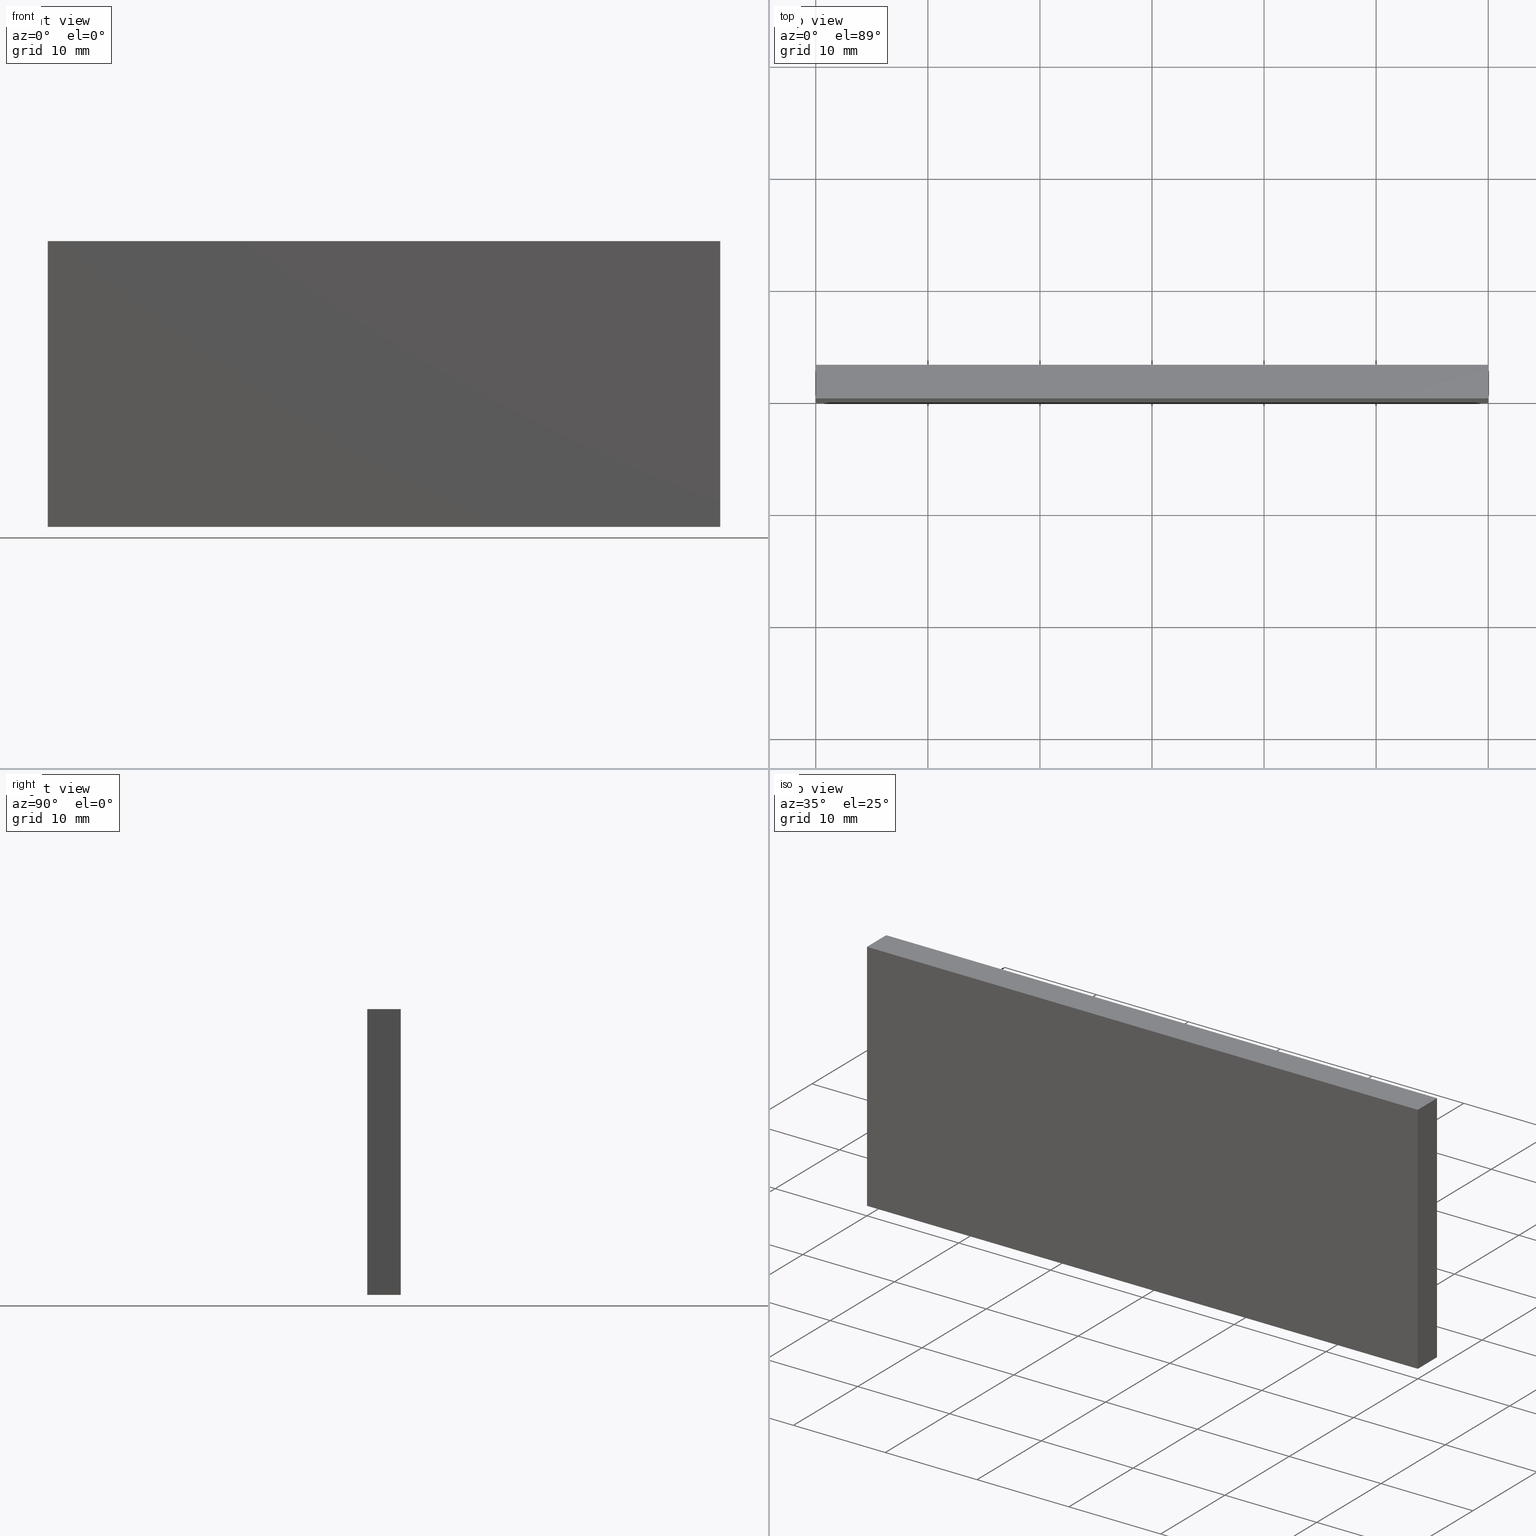
[diagram: canonical four-view strip — front | top / right | iso, engineering-drawing reading convention]
A machine part, canonical four-view strip (front | top / right | iso — engineering-drawing reading convention). The complete STEP part file that produces these views, byte-faithful:
ISO-10303-21;
HEADER;
FILE_DESCRIPTION (( 'STEP AP214' ),
    '1' );
FILE_NAME ('A000200-V.step',
    '2020-03-12T15:09:04',
    ( '' ),
    ( '' ),
    'SwSTEP 2.0',
    'SolidWorks 2010',
    '' );
FILE_SCHEMA (( 'AUTOMOTIVE_DESIGN' ));
ENDSEC;

DATA;
#1 = PRESENTATION_STYLE_ASSIGNMENT (( #147 ) ) ;
#2 = COLOUR_RGB ( '',0.2000000000000000100, 0.2000000000000000100, 0.2000000000000000100 ) ;
#3 = VECTOR ( 'NONE', #118, 1000.000000000000000 ) ;
#4 = LINE ( 'NONE', #115, #3 ) ;
#5 = STYLED_ITEM ( 'NONE', ( #1 ), #243 ) ;
#6 =( GEOMETRIC_REPRESENTATION_CONTEXT ( 3 ) GLOBAL_UNCERTAINTY_ASSIGNED_CONTEXT ( ( #287 ) ) GLOBAL_UNIT_ASSIGNED_CONTEXT ( ( #51, #50, #49 ) ) REPRESENTATION_CONTEXT ( 'NONE', 'WORKASPACE' ) );
#7 = VECTOR ( 'NONE', #114, 1000.000000000000000 ) ;
#8 =( GEOMETRIC_REPRESENTATION_CONTEXT ( 3 ) GLOBAL_UNCERTAINTY_ASSIGNED_CONTEXT ( ( #292 ) ) GLOBAL_UNIT_ASSIGNED_CONTEXT ( ( #69, #66, #67 ) ) REPRESENTATION_CONTEXT ( 'NONE', 'WORKASPACE' ) );
#9 = SHAPE_DEFINITION_REPRESENTATION ( #41, #291 ) ;
#10 = VECTOR ( 'NONE', #133, 1000.000000000000000 ) ;
#11 =( GEOMETRIC_REPRESENTATION_CONTEXT ( 3 ) GLOBAL_UNCERTAINTY_ASSIGNED_CONTEXT ( ( #288 ) ) GLOBAL_UNIT_ASSIGNED_CONTEXT ( ( #137, #136, #139 ) ) REPRESENTATION_CONTEXT ( 'NONE', 'WORKASPACE' ) );
#12 = STYLED_ITEM ( 'NONE', ( #13 ), #291 ) ;
#13 = PRESENTATION_STYLE_ASSIGNMENT (( #70 ) ) ;
#14 = SURFACE_STYLE_FILL_AREA ( #68 ) ;
#15 =( GEOMETRIC_REPRESENTATION_CONTEXT ( 3 ) GLOBAL_UNCERTAINTY_ASSIGNED_CONTEXT ( ( #290 ) ) GLOBAL_UNIT_ASSIGNED_CONTEXT ( ( #113, #143, #74 ) ) REPRESENTATION_CONTEXT ( 'NONE', 'WORKASPACE' ) );
#16 =( GEOMETRIC_REPRESENTATION_CONTEXT ( 3 ) GLOBAL_UNCERTAINTY_ASSIGNED_CONTEXT ( ( #289 ) ) GLOBAL_UNIT_ASSIGNED_CONTEXT ( ( #120, #116, #99 ) ) REPRESENTATION_CONTEXT ( 'NONE', 'WORKASPACE' ) );
#17 = STYLED_ITEM ( 'NONE', ( #19 ), #284 ) ;
#18 = LINE ( 'NONE', #102, #24 ) ;
#19 = PRESENTATION_STYLE_ASSIGNMENT (( #131 ) ) ;
#20 = SURFACE_STYLE_FILL_AREA ( #127 ) ;
#21 = COLOUR_RGB ( '',0.7529411764705882200, 0.7529411764705882200, 0.7529411764705882200 ) ;
#22 = VECTOR ( 'NONE', #110, 1000.000000000000000 ) ;
#23 = LINE ( 'NONE', #129, #22 ) ;
#24 = VECTOR ( 'NONE', #103, 1000.000000000000000 ) ;
#25 = VECTOR ( 'NONE', #123, 1000.000000000000000 ) ;
#26 = LINE ( 'NONE', #142, #25 ) ;
#27 = VECTOR ( 'NONE', #122, 1000.000000000000000 ) ;
#28 = LINE ( 'NONE', #145, #27 ) ;
#29 = VECTOR ( 'NONE', #108, 1000.000000000000000 ) ;
#30 = LINE ( 'NONE', #106, #29 ) ;
#31 = COLOUR_RGB ( '',0.7529411764705882200, 0.7529411764705882200, 0.7529411764705882200 ) ;
#32 = VECTOR ( 'NONE', #105, 1000.000000000000000 ) ;
#33 = VECTOR ( 'NONE', #104, 1000.000000000000000 ) ;
#34 = LINE ( 'NONE', #135, #33 ) ;
#35 = LINE ( 'NONE', #144, #38 ) ;
#36 = VECTOR ( 'NONE', #126, 1000.000000000000000 ) ;
#37 = LINE ( 'NONE', #130, #32 ) ;
#38 = VECTOR ( 'NONE', #141, 1000.000000000000000 ) ;
#39 = LINE ( 'NONE', #111, #36 ) ;
#40 = PRODUCT_DEFINITION_CONTEXT ( 'detailed design', #100, 'design' ) ;
#41 = PRODUCT_DEFINITION_SHAPE ( 'NONE', 'NONE',  #280 ) ;
#42 = SURFACE_STYLE_USAGE ( .BOTH. , #60 ) ;
#43 =( LENGTH_UNIT ( ) NAMED_UNIT ( * ) SI_UNIT ( .MILLI., .METRE. ) );
#44 =( NAMED_UNIT ( * ) PLANE_ANGLE_UNIT ( ) SI_UNIT ( $, .RADIAN. ) );
#45 =( NAMED_UNIT ( * ) SI_UNIT ( $, .STERADIAN. ) SOLID_ANGLE_UNIT ( ) );
#46 = PLANE ( 'NONE',  #263 ) ;
#47 = PLANE ( 'NONE',  #276 ) ;
#48 = DIRECTION ( 'NONE',  ( -0.0000000000000000000, 1.000000000000000000, 0.0000000000000000000 ) ) ;
#49 =( NAMED_UNIT ( * ) SI_UNIT ( $, .STERADIAN. ) SOLID_ANGLE_UNIT ( ) );
#50 =( NAMED_UNIT ( * ) PLANE_ANGLE_UNIT ( ) SI_UNIT ( $, .RADIAN. ) );
#51 =( LENGTH_UNIT ( ) NAMED_UNIT ( * ) SI_UNIT ( .MILLI., .METRE. ) );
#52 = SURFACE_STYLE_USAGE ( .BOTH. , #53 ) ;
#53 = SURFACE_SIDE_STYLE ('',( #200 ) ) ;
#54 = FILL_AREA_STYLE_COLOUR ( '', #210 ) ;
#55 = FILL_AREA_STYLE ('',( #54 ) ) ;
#56 = CARTESIAN_POINT ( 'NONE',  ( 30.00000000000000000, 3.000000000000000000, 12.75000000000000000 ) ) ;
#57 = DIRECTION ( 'NONE',  ( 0.0000000000000000000, 0.0000000000000000000, -1.000000000000000000 ) ) ;
#58 = DIRECTION ( 'NONE',  ( 1.000000000000000000, 0.0000000000000000000, 0.0000000000000000000 ) ) ;
#59 = DIRECTION ( 'NONE',  ( 0.0000000000000000000, -0.0000000000000000000, 1.000000000000000000 ) ) ;
#60 = SURFACE_SIDE_STYLE ('',( #209 ) ) ;
#61 = FILL_AREA_STYLE ('',( #63 ) ) ;
#62 = CARTESIAN_POINT ( 'NONE',  ( 0.0000000000000000000, 3.000000000000000000, 0.0000000000000000000 ) ) ;
#63 = FILL_AREA_STYLE_COLOUR ( '', #226 ) ;
#64 = DIRECTION ( 'NONE',  ( 1.000000000000000000, 0.0000000000000000000, 0.0000000000000000000 ) ) ;
#65 = CARTESIAN_POINT ( 'NONE',  ( 0.0000000000000000000, 0.0000000000000000000, 0.0000000000000000000 ) ) ;
#66 =( NAMED_UNIT ( * ) PLANE_ANGLE_UNIT ( ) SI_UNIT ( $, .RADIAN. ) );
#67 =( NAMED_UNIT ( * ) SI_UNIT ( $, .STERADIAN. ) SOLID_ANGLE_UNIT ( ) );
#68 = FILL_AREA_STYLE ('',( #132 ) ) ;
#69 =( LENGTH_UNIT ( ) NAMED_UNIT ( * ) SI_UNIT ( .MILLI., .METRE. ) );
#70 = SURFACE_STYLE_USAGE ( .BOTH. , #171 ) ;
#71 = CARTESIAN_POINT ( 'NONE',  ( -30.00000000000000000, 3.000000000000000000, 12.75000000000000000 ) ) ;
#72 = DIRECTION ( 'NONE',  ( 0.0000000000000000000, -0.0000000000000000000, 1.000000000000000000 ) ) ;
#73 = CARTESIAN_POINT ( 'NONE',  ( -30.00000000000000000, 0.0000000000000000000, -12.75000000000000000 ) ) ;
#74 =( NAMED_UNIT ( * ) SI_UNIT ( $, .STERADIAN. ) SOLID_ANGLE_UNIT ( ) );
#75 = DIRECTION ( 'NONE',  ( -1.000000000000000000, 0.0000000000000000000, 0.0000000000000000000 ) ) ;
#76 = CARTESIAN_POINT ( 'NONE',  ( 30.00000000000000000, 3.000000000000000000, 12.75000000000000000 ) ) ;
#77 = VERTEX_POINT ( 'NONE', #138 ) ;
#78 = CARTESIAN_POINT ( 'NONE',  ( -30.00000000000000000, 3.000000000000000000, 12.75000000000000000 ) ) ;
#79 = CARTESIAN_POINT ( 'NONE',  ( -30.00000000000000000, 0.0000000000000000000, 12.75000000000000000 ) ) ;
#80 = CARTESIAN_POINT ( 'NONE',  ( 30.00000000000000000, 0.0000000000000000000, 12.75000000000000000 ) ) ;
#81 = CARTESIAN_POINT ( 'NONE',  ( 30.00000000000000000, 0.0000000000000000000, -12.75000000000000000 ) ) ;
#82 = PLANE ( 'NONE',  #268 ) ;
#83 = FILL_AREA_STYLE_COLOUR ( '', #194 ) ;
#84 = CARTESIAN_POINT ( 'NONE',  ( 30.00000000000000000, 3.000000000000000000, -12.75000000000000000 ) ) ;
#85 = FILL_AREA_STYLE ('',( #83 ) ) ;
#86 = SURFACE_SIDE_STYLE ('',( #185 ) ) ;
#87 = SURFACE_STYLE_USAGE ( .BOTH. , #86 ) ;
#88 =( LENGTH_UNIT ( ) NAMED_UNIT ( * ) SI_UNIT ( .MILLI., .METRE. ) );
#89 =( NAMED_UNIT ( * ) PLANE_ANGLE_UNIT ( ) SI_UNIT ( $, .RADIAN. ) );
#90 =( NAMED_UNIT ( * ) SI_UNIT ( $, .STERADIAN. ) SOLID_ANGLE_UNIT ( ) );
#91 = VERTEX_POINT ( 'NONE', #78 ) ;
#92 = VERTEX_POINT ( 'NONE', #73 ) ;
#93 = VERTEX_POINT ( 'NONE', #80 ) ;
#94 = CARTESIAN_POINT ( 'NONE',  ( 0.0000000000000000000, 0.0000000000000000000, 0.0000000000000000000 ) ) ;
#95 = VERTEX_POINT ( 'NONE', #98 ) ;
#96 = VERTEX_POINT ( 'NONE', #81 ) ;
#97 = VERTEX_POINT ( 'NONE', #79 ) ;
#98 = CARTESIAN_POINT ( 'NONE',  ( -30.00000000000000000, 3.000000000000000000, -12.75000000000000000 ) ) ;
#99 =( NAMED_UNIT ( * ) SI_UNIT ( $, .STERADIAN. ) SOLID_ANGLE_UNIT ( ) );
#100 = APPLICATION_CONTEXT ( 'automotive_design' ) ;
#101 = FILL_AREA_STYLE_COLOUR ( '', #31 ) ;
#102 = CARTESIAN_POINT ( 'NONE',  ( -30.00000000000000000, 3.000000000000000000, 12.75000000000000000 ) ) ;
#103 = DIRECTION ( 'NONE',  ( 0.0000000000000000000, 1.000000000000000000, 0.0000000000000000000 ) ) ;
#104 = DIRECTION ( 'NONE',  ( 0.0000000000000000000, 1.000000000000000000, -0.0000000000000000000 ) ) ;
#105 = DIRECTION ( 'NONE',  ( -1.000000000000000000, -0.0000000000000000000, -0.0000000000000000000 ) ) ;
#106 = CARTESIAN_POINT ( 'NONE',  ( -30.00000000000000000, 0.0000000000000000000, 12.75000000000000000 ) ) ;
#107 = APPLICATION_PROTOCOL_DEFINITION ( 'draft international standard', 'automotive_design', 1998, #146 ) ;
#108 = DIRECTION ( 'NONE',  ( -1.000000000000000000, 0.0000000000000000000, -0.0000000000000000000 ) ) ;
#109 = DIRECTION ( 'NONE',  ( 0.0000000000000000000, 0.0000000000000000000, 1.000000000000000000 ) ) ;
#110 = DIRECTION ( 'NONE',  ( 1.000000000000000000, 0.0000000000000000000, 0.0000000000000000000 ) ) ;
#111 = CARTESIAN_POINT ( 'NONE',  ( -30.00000000000000000, 3.000000000000000000, 0.0000000000000000000 ) ) ;
#112 = CARTESIAN_POINT ( 'NONE',  ( -30.00000000000000000, 3.000000000000000000, -12.75000000000000000 ) ) ;
#113 =( LENGTH_UNIT ( ) NAMED_UNIT ( * ) SI_UNIT ( .MILLI., .METRE. ) );
#114 = DIRECTION ( 'NONE',  ( 0.0000000000000000000, -1.000000000000000000, -0.0000000000000000000 ) ) ;
#115 = CARTESIAN_POINT ( 'NONE',  ( 30.00000000000000000, 0.0000000000000000000, 12.75000000000000000 ) ) ;
#116 =( NAMED_UNIT ( * ) PLANE_ANGLE_UNIT ( ) SI_UNIT ( $, .RADIAN. ) );
#117 = SURFACE_SIDE_STYLE ('',( #20 ) ) ;
#118 = DIRECTION ( 'NONE',  ( 0.0000000000000000000, 0.0000000000000000000, 1.000000000000000000 ) ) ;
#119 = CARTESIAN_POINT ( 'NONE',  ( 30.00000000000000000, 3.000000000000000000, 0.0000000000000000000 ) ) ;
#120 =( LENGTH_UNIT ( ) NAMED_UNIT ( * ) SI_UNIT ( .MILLI., .METRE. ) );
#121 = SURFACE_SIDE_STYLE ('',( #206 ) ) ;
#122 = DIRECTION ( 'NONE',  ( 0.0000000000000000000, 0.0000000000000000000, -1.000000000000000000 ) ) ;
#123 = DIRECTION ( 'NONE',  ( -0.0000000000000000000, 1.000000000000000000, 0.0000000000000000000 ) ) ;
#124 = PRODUCT_CONTEXT ( 'NONE', #146, 'mechanical' ) ;
#125 = FILL_AREA_STYLE ('',( #128 ) ) ;
#126 = DIRECTION ( 'NONE',  ( 0.0000000000000000000, -0.0000000000000000000, 1.000000000000000000 ) ) ;
#127 = FILL_AREA_STYLE ('',( #101 ) ) ;
#128 = FILL_AREA_STYLE_COLOUR ( '', #2 ) ;
#129 = CARTESIAN_POINT ( 'NONE',  ( 0.0000000000000000000, 3.000000000000000000, 12.75000000000000000 ) ) ;
#130 = CARTESIAN_POINT ( 'NONE',  ( 0.0000000000000000000, 3.000000000000000000, -12.75000000000000000 ) ) ;
#131 = SURFACE_STYLE_USAGE ( .BOTH. , #117 ) ;
#132 = FILL_AREA_STYLE_COLOUR ( '', #21 ) ;
#133 = DIRECTION ( 'NONE',  ( -0.0000000000000000000, 0.0000000000000000000, -1.000000000000000000 ) ) ;
#134 = APPLICATION_PROTOCOL_DEFINITION ( 'draft international standard', 'automotive_design', 1998, #100 ) ;
#135 = CARTESIAN_POINT ( 'NONE',  ( 30.00000000000000000, 3.000000000000000000, 12.75000000000000000 ) ) ;
#136 =( NAMED_UNIT ( * ) PLANE_ANGLE_UNIT ( ) SI_UNIT ( $, .RADIAN. ) );
#137 =( LENGTH_UNIT ( ) NAMED_UNIT ( * ) SI_UNIT ( .MILLI., .METRE. ) );
#138 = CARTESIAN_POINT ( 'NONE',  ( 30.00000000000000000, 3.000000000000000000, -12.75000000000000000 ) ) ;
#139 =( NAMED_UNIT ( * ) SI_UNIT ( $, .STERADIAN. ) SOLID_ANGLE_UNIT ( ) );
#140 = VERTEX_POINT ( 'NONE', #76 ) ;
#141 = DIRECTION ( 'NONE',  ( 1.000000000000000000, 0.0000000000000000000, -0.0000000000000000000 ) ) ;
#142 = CARTESIAN_POINT ( 'NONE',  ( 30.00000000000000000, 3.000000000000000000, -12.75000000000000000 ) ) ;
#143 =( NAMED_UNIT ( * ) PLANE_ANGLE_UNIT ( ) SI_UNIT ( $, .RADIAN. ) );
#144 = CARTESIAN_POINT ( 'NONE',  ( 30.00000000000000000, 0.0000000000000000000, -12.75000000000000000 ) ) ;
#145 = CARTESIAN_POINT ( 'NONE',  ( -30.00000000000000000, 0.0000000000000000000, -12.75000000000000000 ) ) ;
#146 = APPLICATION_CONTEXT ( 'automotive_design' ) ;
#147 = SURFACE_STYLE_USAGE ( .BOTH. , #121 ) ;
#148 =( NAMED_UNIT ( * ) SI_UNIT ( $, .STERADIAN. ) SOLID_ANGLE_UNIT ( ) );
#149 =( NAMED_UNIT ( * ) PLANE_ANGLE_UNIT ( ) SI_UNIT ( $, .RADIAN. ) );
#150 =( LENGTH_UNIT ( ) NAMED_UNIT ( * ) SI_UNIT ( .MILLI., .METRE. ) );
#151 = PLANE ( 'NONE',  #277 ) ;
#152 = DIRECTION ( 'NONE',  ( 0.0000000000000000000, 0.0000000000000000000, 1.000000000000000000 ) ) ;
#153 = DIRECTION ( 'NONE',  ( -1.000000000000000000, 0.0000000000000000000, -0.0000000000000000000 ) ) ;
#154 = DIRECTION ( 'NONE',  ( 0.0000000000000000000, 0.0000000000000000000, -1.000000000000000000 ) ) ;
#155 = PLANE ( 'NONE',  #255 ) ;
#156 =( NAMED_UNIT ( * ) SI_UNIT ( $, .STERADIAN. ) SOLID_ANGLE_UNIT ( ) );
#157 =( NAMED_UNIT ( * ) PLANE_ANGLE_UNIT ( ) SI_UNIT ( $, .RADIAN. ) );
#158 =( LENGTH_UNIT ( ) NAMED_UNIT ( * ) SI_UNIT ( .MILLI., .METRE. ) );
#159 = SURFACE_STYLE_USAGE ( .BOTH. , #161 ) ;
#160 = FILL_AREA_STYLE ('',( #162 ) ) ;
#161 = SURFACE_SIDE_STYLE ('',( #190 ) ) ;
#162 = FILL_AREA_STYLE_COLOUR ( '', #180 ) ;
#163 = CARTESIAN_POINT ( 'NONE',  ( -30.00000000000000000, 3.000000000000000000, -12.75000000000000000 ) ) ;
#164 = DIRECTION ( 'NONE',  ( 1.000000000000000000, 0.0000000000000000000, -0.0000000000000000000 ) ) ;
#165 = DIRECTION ( 'NONE',  ( -0.0000000000000000000, 1.000000000000000000, 0.0000000000000000000 ) ) ;
#166 = SURFACE_STYLE_USAGE ( .BOTH. , #167 ) ;
#167 = SURFACE_SIDE_STYLE ('',( #195 ) ) ;
#168 = FILL_AREA_STYLE_COLOUR ( '', #201 ) ;
#169 = FILL_AREA_STYLE ('',( #168 ) ) ;
#170 = PLANE ( 'NONE',  #259 ) ;
#171 = SURFACE_SIDE_STYLE ('',( #14 ) ) ;
#172 = DIRECTION ( 'NONE',  ( 0.0000000000000000000, 0.0000000000000000000, 1.000000000000000000 ) ) ;
#173 = ORIENTED_EDGE ( 'NONE', *, *, #275, .F. ) ;
#174 = ORIENTED_EDGE ( 'NONE', *, *, #272, .F. ) ;
#175 = STYLED_ITEM ( 'NONE', ( #202 ), #241 ) ;
#176 = ORIENTED_EDGE ( 'NONE', *, *, #247, .F. ) ;
#177 = FACE_OUTER_BOUND ( 'NONE', #215, .T. ) ;
#178 = ORIENTED_EDGE ( 'NONE', *, *, #254, .F. ) ;
#179 = STYLED_ITEM ( 'NONE', ( #208 ), #240 ) ;
#180 = COLOUR_RGB ( '',0.2000000000000000100, 0.2000000000000000100, 0.2000000000000000100 ) ;
#181 = FACE_OUTER_BOUND ( 'NONE', #231, .T. ) ;
#182 = ORIENTED_EDGE ( 'NONE', *, *, #256, .T. ) ;
#183 = STYLED_ITEM ( 'NONE', ( #184 ), #238 ) ;
#184 = PRESENTATION_STYLE_ASSIGNMENT (( #87 ) ) ;
#185 = SURFACE_STYLE_FILL_AREA ( #85 ) ;
#186 = ORIENTED_EDGE ( 'NONE', *, *, #262, .F. ) ;
#187 = ORIENTED_EDGE ( 'NONE', *, *, #266, .F. ) ;
#188 = ORIENTED_EDGE ( 'NONE', *, *, #253, .T. ) ;
#189 = PRESENTATION_STYLE_ASSIGNMENT (( #166 ) ) ;
#190 = SURFACE_STYLE_FILL_AREA ( #160 ) ;
#191 =( GEOMETRIC_REPRESENTATION_CONTEXT ( 3 ) GLOBAL_UNCERTAINTY_ASSIGNED_CONTEXT ( ( #282 ) ) GLOBAL_UNIT_ASSIGNED_CONTEXT ( ( #88, #89, #90 ) ) REPRESENTATION_CONTEXT ( 'NONE', 'WORKASPACE' ) );
#192 = ORIENTED_EDGE ( 'NONE', *, *, #272, .T. ) ;
#193 = LINE ( 'NONE', #112, #7 ) ;
#194 = COLOUR_RGB ( '',0.2000000000000000100, 0.2000000000000000100, 0.2000000000000000100 ) ;
#195 = SURFACE_STYLE_FILL_AREA ( #169 ) ;
#196 = ORIENTED_EDGE ( 'NONE', *, *, #275, .T. ) ;
#197 = ORIENTED_EDGE ( 'NONE', *, *, #262, .T. ) ;
#198 =( GEOMETRIC_REPRESENTATION_CONTEXT ( 3 ) GLOBAL_UNCERTAINTY_ASSIGNED_CONTEXT ( ( #283 ) ) GLOBAL_UNIT_ASSIGNED_CONTEXT ( ( #43, #44, #45 ) ) REPRESENTATION_CONTEXT ( 'NONE', 'WORKASPACE' ) );
#199 = STYLED_ITEM ( 'NONE', ( #189 ), #239 ) ;
#200 = SURFACE_STYLE_FILL_AREA ( #55 ) ;
#201 = COLOUR_RGB ( '',0.2000000000000000100, 0.2000000000000000100, 0.2000000000000000100 ) ;
#202 = PRESENTATION_STYLE_ASSIGNMENT (( #42 ) ) ;
#203 = FACE_OUTER_BOUND ( 'NONE', #217, .T. ) ;
#204 = ORIENTED_EDGE ( 'NONE', *, *, #246, .F. ) ;
#205 = FACE_OUTER_BOUND ( 'NONE', #216, .T. ) ;
#206 = SURFACE_STYLE_FILL_AREA ( #125 ) ;
#207 = ORIENTED_EDGE ( 'NONE', *, *, #256, .F. ) ;
#208 = PRESENTATION_STYLE_ASSIGNMENT (( #159 ) ) ;
#209 = SURFACE_STYLE_FILL_AREA ( #61 ) ;
#210 = COLOUR_RGB ( '',0.2000000000000000100, 0.2000000000000000100, 0.2000000000000000100 ) ;
#211 = EDGE_LOOP ( 'NONE', ( #204, #186, #220, #207 ) ) ;
#212 = FACE_OUTER_BOUND ( 'NONE', #232, .T. ) ;
#213 = FACE_OUTER_BOUND ( 'NONE', #211, .T. ) ;
#214 =( GEOMETRIC_REPRESENTATION_CONTEXT ( 3 ) GLOBAL_UNCERTAINTY_ASSIGNED_CONTEXT ( ( #285 ) ) GLOBAL_UNIT_ASSIGNED_CONTEXT ( ( #150, #149, #148 ) ) REPRESENTATION_CONTEXT ( 'NONE', 'WORKASPACE' ) );
#215 = EDGE_LOOP ( 'NONE', ( #227, #197, #188, #196 ) ) ;
#216 = EDGE_LOOP ( 'NONE', ( #236, #178, #229, #176 ) ) ;
#217 = EDGE_LOOP ( 'NONE', ( #233, #173, #174, #187 ) ) ;
#218 = PRESENTATION_STYLE_ASSIGNMENT (( #52 ) ) ;
#219 = STYLED_ITEM ( 'NONE', ( #218 ), #242 ) ;
#220 = ORIENTED_EDGE ( 'NONE', *, *, #270, .F. ) ;
#221 =( GEOMETRIC_REPRESENTATION_CONTEXT ( 3 ) GLOBAL_UNCERTAINTY_ASSIGNED_CONTEXT ( ( #286 ) ) GLOBAL_UNIT_ASSIGNED_CONTEXT ( ( #158, #157, #156 ) ) REPRESENTATION_CONTEXT ( 'NONE', 'WORKASPACE' ) );
#222 = ORIENTED_EDGE ( 'NONE', *, *, #246, .T. ) ;
#223 = ORIENTED_EDGE ( 'NONE', *, *, #267, .T. ) ;
#224 = ORIENTED_EDGE ( 'NONE', *, *, #247, .T. ) ;
#225 = LINE ( 'NONE', #119, #10 ) ;
#226 = COLOUR_RGB ( '',0.2000000000000000100, 0.2000000000000000100, 0.2000000000000000100 ) ;
#227 = ORIENTED_EDGE ( 'NONE', *, *, #254, .T. ) ;
#228 = ORIENTED_EDGE ( 'NONE', *, *, #267, .F. ) ;
#229 = ORIENTED_EDGE ( 'NONE', *, *, #257, .F. ) ;
#230 = ORIENTED_EDGE ( 'NONE', *, *, #253, .F. ) ;
#231 = EDGE_LOOP ( 'NONE', ( #192, #230, #222, #228 ) ) ;
#232 = EDGE_LOOP ( 'NONE', ( #224, #234, #223, #182 ) ) ;
#233 = ORIENTED_EDGE ( 'NONE', *, *, #257, .T. ) ;
#234 = ORIENTED_EDGE ( 'NONE', *, *, #266, .T. ) ;
#235 = CLOSED_SHELL ( 'NONE', ( #238, #241, #240, #243, #239, #242 ) ) ;
#236 = ORIENTED_EDGE ( 'NONE', *, *, #270, .T. ) ;
#237 = PRODUCT ( 'A000200-V', 'A000200-V', '', ( #124 ) ) ;
#238 = ADVANCED_FACE ( 'NONE', ( #212 ), #82, .F. ) ;
#239 = ADVANCED_FACE ( 'NONE', ( #213 ), #170, .F. ) ;
#240 = ADVANCED_FACE ( 'NONE', ( #203 ), #151, .F. ) ;
#241 = ADVANCED_FACE ( 'NONE', ( #181 ), #155, .F. ) ;
#242 = ADVANCED_FACE ( 'NONE', ( #177 ), #46, .T. ) ;
#243 = ADVANCED_FACE ( 'NONE', ( #205 ), #47, .F. ) ;
#244 = PRESENTATION_LAYER_ASSIGNMENT (  '', '', ( #219 ) ) ;
#245 = PRESENTATION_LAYER_ASSIGNMENT (  '', '', ( #5 ) ) ;
#246 = EDGE_CURVE ( 'NONE', #95, #92, #193, .T. ) ;
#247 = EDGE_CURVE ( 'NONE', #96, #93, #4, .T. ) ;
#248 = MECHANICAL_DESIGN_GEOMETRIC_PRESENTATION_REPRESENTATION (  '', ( #175 ), #198 ) ;
#249 = PRODUCT_DEFINITION_FORMATION_WITH_SPECIFIED_SOURCE ( 'ANY', '', #237, .NOT_KNOWN. ) ;
#250 = PRODUCT_RELATED_PRODUCT_CATEGORY ( 'part', '', ( #237 ) ) ;
#251 = PRESENTATION_LAYER_ASSIGNMENT (  '', '', ( #199 ) ) ;
#252 = PRESENTATION_LAYER_ASSIGNMENT (  '', '', ( #17 ) ) ;
#253 = EDGE_CURVE ( 'NONE', #95, #91, #39, .T. ) ;
#254 = EDGE_CURVE ( 'NONE', #140, #77, #225, .T. ) ;
#255 = AXIS2_PLACEMENT_3D ( 'NONE', #163, #58, #57 ) ;
#256 = EDGE_CURVE ( 'NONE', #92, #96, #35, .T. ) ;
#257 = EDGE_CURVE ( 'NONE', #93, #140, #34, .T. ) ;
#258 = PRESENTATION_LAYER_ASSIGNMENT (  '', '', ( #175 ) ) ;
#259 = AXIS2_PLACEMENT_3D ( 'NONE', #84, #152, #164 ) ;
#260 = PRESENTATION_LAYER_ASSIGNMENT (  '', '', ( #183 ) ) ;
#261 = PRESENTATION_LAYER_ASSIGNMENT (  '', '', ( #179 ) ) ;
#262 = EDGE_CURVE ( 'NONE', #77, #95, #37, .T. ) ;
#263 = AXIS2_PLACEMENT_3D ( 'NONE', #62, #48, #59 ) ;
#264 = MECHANICAL_DESIGN_GEOMETRIC_PRESENTATION_REPRESENTATION (  '', ( #183 ), #191 ) ;
#265 = MECHANICAL_DESIGN_GEOMETRIC_PRESENTATION_REPRESENTATION (  '', ( #17 ), #16 ) ;
#266 = EDGE_CURVE ( 'NONE', #93, #97, #30, .T. ) ;
#267 = EDGE_CURVE ( 'NONE', #97, #92, #28, .T. ) ;
#268 = AXIS2_PLACEMENT_3D ( 'NONE', #94, #165, #72 ) ;
#269 = PRESENTATION_LAYER_ASSIGNMENT (  '', '', ( #12 ) ) ;
#270 = EDGE_CURVE ( 'NONE', #96, #77, #26, .T. ) ;
#271 = MECHANICAL_DESIGN_GEOMETRIC_PRESENTATION_REPRESENTATION (  '', ( #199 ), #214 ) ;
#272 = EDGE_CURVE ( 'NONE', #97, #91, #18, .T. ) ;
#273 = MECHANICAL_DESIGN_GEOMETRIC_PRESENTATION_REPRESENTATION (  '', ( #5 ), #11 ) ;
#274 = MECHANICAL_DESIGN_GEOMETRIC_PRESENTATION_REPRESENTATION (  '', ( #179 ), #221 ) ;
#275 = EDGE_CURVE ( 'NONE', #91, #140, #23, .T. ) ;
#276 = AXIS2_PLACEMENT_3D ( 'NONE', #56, #75, #109 ) ;
#277 = AXIS2_PLACEMENT_3D ( 'NONE', #71, #154, #153 ) ;
#278 = MECHANICAL_DESIGN_GEOMETRIC_PRESENTATION_REPRESENTATION (  '', ( #12 ), #8 ) ;
#279 = AXIS2_PLACEMENT_3D ( 'NONE', #65, #172, #64 ) ;
#280 = PRODUCT_DEFINITION ( 'UNKNOWN', '', #249, #40 ) ;
#281 = MECHANICAL_DESIGN_GEOMETRIC_PRESENTATION_REPRESENTATION (  '', ( #219 ), #6 ) ;
#282 = UNCERTAINTY_MEASURE_WITH_UNIT (LENGTH_MEASURE( 1.000000000000000100E-005 ), #88, 'distance_accuracy_value', 'NONE');
#283 = UNCERTAINTY_MEASURE_WITH_UNIT (LENGTH_MEASURE( 1.000000000000000100E-005 ), #43, 'distance_accuracy_value', 'NONE');
#284 = MANIFOLD_SOLID_BREP ( 'A000200', #235 ) ;
#285 = UNCERTAINTY_MEASURE_WITH_UNIT (LENGTH_MEASURE( 1.000000000000000100E-005 ), #150, 'distance_accuracy_value', 'NONE');
#286 = UNCERTAINTY_MEASURE_WITH_UNIT (LENGTH_MEASURE( 1.000000000000000100E-005 ), #158, 'distance_accuracy_value', 'NONE');
#287 = UNCERTAINTY_MEASURE_WITH_UNIT (LENGTH_MEASURE( 1.000000000000000100E-005 ), #51, 'distance_accuracy_value', 'NONE');
#288 = UNCERTAINTY_MEASURE_WITH_UNIT (LENGTH_MEASURE( 1.000000000000000100E-005 ), #137, 'distance_accuracy_value', 'NONE');
#289 = UNCERTAINTY_MEASURE_WITH_UNIT (LENGTH_MEASURE( 1.000000000000000100E-005 ), #120, 'distance_accuracy_value', 'NONE');
#290 = UNCERTAINTY_MEASURE_WITH_UNIT (LENGTH_MEASURE( 1.000000000000000100E-005 ), #113, 'distance_accuracy_value', 'NONE');
#291 = ADVANCED_BREP_SHAPE_REPRESENTATION ( 'A000200-V', ( #284, #279 ), #15 ) ;
#292 = UNCERTAINTY_MEASURE_WITH_UNIT (LENGTH_MEASURE( 1.000000000000000100E-005 ), #69, 'distance_accuracy_value', 'NONE');
ENDSEC;
END-ISO-10303-21;
